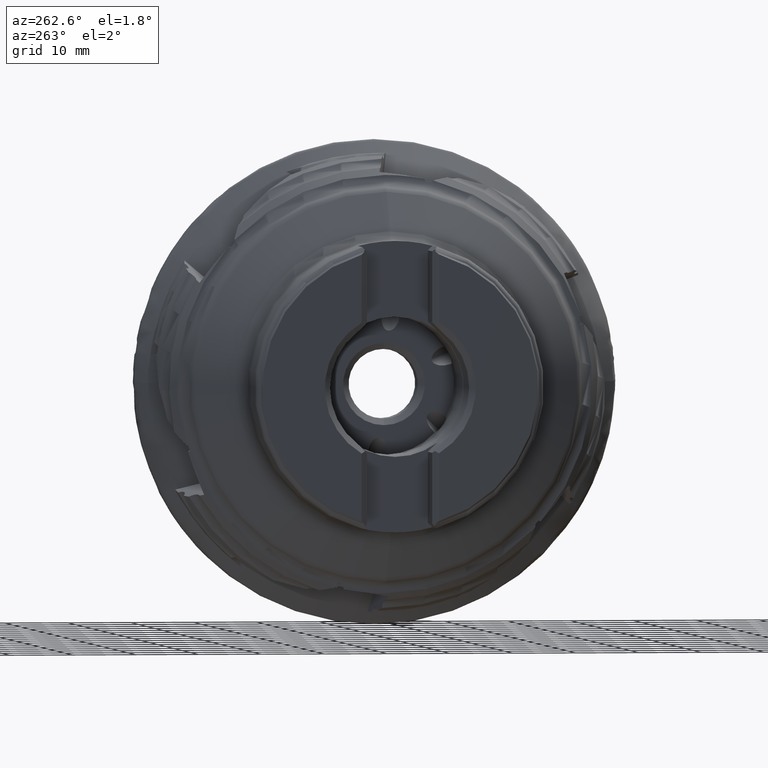
[diagram: clean part render]
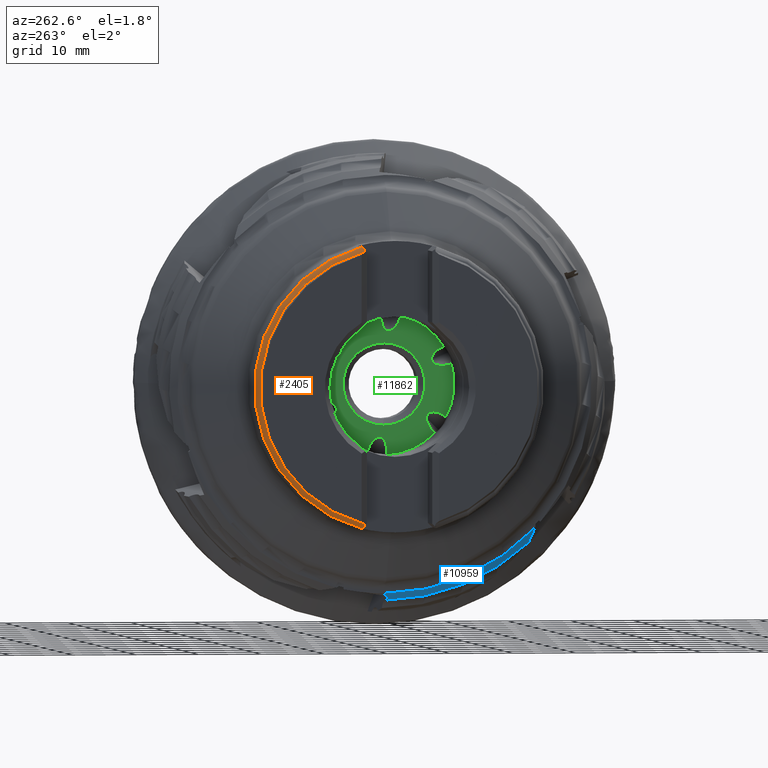
[diagram: same view with three faces highlighted in distinct colors, each labeled with its STEP entity id]
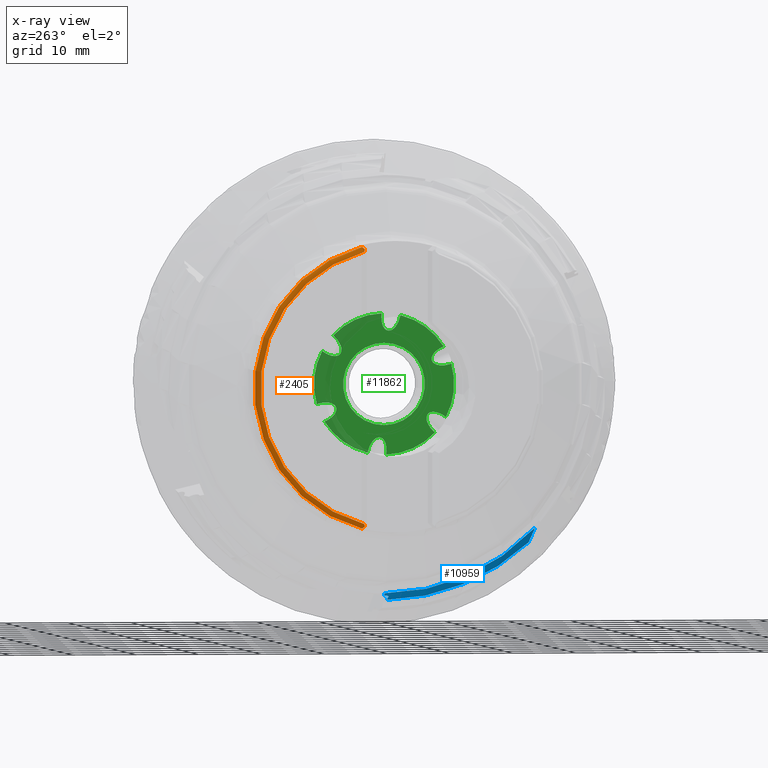
[diagram: x-ray of the same camera — body ghosted, the three highlighted faces saturated]
A machine part, auxiliary view with three faces highlighted in distinct colors.
The next image is the same camera in x-ray (body ghosted, the three faces saturated) — at least one of them is partly hidden behind the body in this view.
Their STEP definitions:

[orange] entity #2405 — the highlighted toroidal blend (fillet) surface has major radius 22 mm and minor (blend) radius 1 mm.
#309 = EDGE_CURVE ( 'NONE', #9763, #8034, #2892, .T. ) ;
#355 = CARTESIAN_POINT ( 'NONE',  ( -38.59392435208307100, 5.543924352083065400, -21.84392435208306800 ) ) ;
#623 = VERTEX_POINT ( 'NONE', #11061 ) ;
#653 = AXIS2_PLACEMENT_3D ( 'NONE', #6566, #2868, #3807 ) ;
#679 = CARTESIAN_POINT ( 'NONE',  ( -37.74999999999999300, 5.924000852636036800, -22.22400085263603800 ) ) ;
#709 = EDGE_CURVE ( 'NONE', #10643, #8169, #3920, .T. ) ;
#820 = ORIENTED_EDGE ( 'NONE', *, *, #309, .F. ) ;
#1083 = B_SPLINE_CURVE_WITH_KNOTS ( 'NONE', 3,
 ( #355, #2230, #9646, #4107 ),
 .UNSPECIFIED., .F., .F.,
 ( 4, 4 ),
 ( 0.0000000000000000000, 0.0004227973774439351400 ),
 .UNSPECIFIED. ) ;
#1260 = CARTESIAN_POINT ( 'NONE',  ( -38.59392435208307100, 5.543924352083065400, -21.84392435208306800 ) ) ;
#1725 = CARTESIAN_POINT ( 'NONE',  ( -38.09875725518982400, 5.884928782408032100, 22.18492878240802900 ) ) ;
#1964 = ORIENTED_EDGE ( 'NONE', *, *, #4383, .F. ) ;
#2003 = CARTESIAN_POINT ( 'NONE',  ( -38.72876197310684200, 5.678761973106821500, 21.46657139491063800 ) ) ;
#2230 = CARTESIAN_POINT ( 'NONE',  ( -38.65485736266822400, 5.604857362668206600, -21.72956523835142000 ) ) ;
#2405 = ADVANCED_FACE ( 'NONE', ( #8545 ), #6079, .T. ) ;
#2660 = CARTESIAN_POINT ( 'NONE',  ( -38.51025535695749400, 5.652231412740599500, 21.95223141274060600 ) ) ;
#2840 = VERTEX_POINT ( 'NONE', #1260 ) ;
#2868 = DIRECTION ( 'NONE',  ( 1.000000000000000000, -0.0000000000000000000, -0.0000000000000000000 ) ) ;
#2892 = CIRCLE ( 'NONE', #4783, 22.99999999999999600 ) ;
#3725 = EDGE_CURVE ( 'NONE', #2840, #623, #1083, .T. ) ;
#3807 = DIRECTION ( 'NONE',  ( 0.0000000000000000000, 0.0000000000000000000, -1.000000000000000000 ) ) ;
#3893 = EDGE_LOOP ( 'NONE', ( #10751, #9922, #4750, #820, #1964, #8447 ) ) ;
#3920 = B_SPLINE_CURVE_WITH_KNOTS ( 'NONE', 3,
 ( #2003, #3931, #10294, #6679 ),
 .UNSPECIFIED., .F., .F.,
 ( 4, 4 ),
 ( 0.0000000000000000000, 0.0004227973774523293600 ),
 .UNSPECIFIED. ) ;
#3931 = CARTESIAN_POINT ( 'NONE',  ( -38.70207927134853800, 5.652079271348525500, 21.60540748741974300 ) ) ;
#4107 = CARTESIAN_POINT ( 'NONE',  ( -38.72876197310684200, 5.678761973106823300, -21.46657139491064100 ) ) ;
#4381 = CARTESIAN_POINT ( 'NONE',  ( -38.50153732947688200, 5.649252262166675600, -21.94925226216668100 ) ) ;
#4383 = EDGE_CURVE ( 'NONE', #2840, #9763, #9549, .T. ) ;
#4510 = CARTESIAN_POINT ( 'NONE',  ( -37.92676474931748500, 5.924000852636037700, 22.22400085263604200 ) ) ;
#4607 = DIRECTION ( 'NONE',  ( 1.000000000000000000, -0.0000000000000000000, -0.0000000000000000000 ) ) ;
#4655 = CARTESIAN_POINT ( 'NONE',  ( -37.74999999999999300, 5.924000852636036800, -22.22400085263603800 ) ) ;
#4750 = ORIENTED_EDGE ( 'NONE', *, *, #10699, .F. ) ;
#4783 = AXIS2_PLACEMENT_3D ( 'NONE', #7914, #8119, #11976 ) ;
#5113 = CARTESIAN_POINT ( 'NONE',  ( -37.74999999999999300, 5.924000852636039500, 22.22400085263603800 ) ) ;
#5317 = CARTESIAN_POINT ( 'NONE',  ( -38.31858720140054700, 5.782381640609658600, -22.08238164060966100 ) ) ;
#5357 = CARTESIAN_POINT ( 'NONE',  ( -38.72876197310684200, 5.678761973106821500, 21.46657139491063800 ) ) ;
#6079 = TOROIDAL_SURFACE ( 'NONE', #653, 21.99999999999999600, 1.000000000000002400 ) ;
#6237 = CARTESIAN_POINT ( 'NONE',  ( -37.92736952853886800, 5.924000852641955600, -22.22400085264196100 ) ) ;
#6566 = CARTESIAN_POINT ( 'NONE',  ( -37.74999999999999300, 0.0000000000000000000, 0.0000000000000000000 ) ) ;
#6679 = CARTESIAN_POINT ( 'NONE',  ( -38.59392435207517000, 5.543924352093299900, 21.84392435209330300 ) ) ;
#6897 = B_SPLINE_CURVE_WITH_KNOTS ( 'NONE', 3,
 ( #10940, #4510, #1725, #8224, #2660, #9164 ),
 .UNSPECIFIED., .F., .F.,
 ( 4, 2, 4 ),
 ( 1.969727376262053200E-007, 0.0005224751361348518700, 0.001044753299532077600 ),
 .UNSPECIFIED. ) ;
#7298 = EDGE_CURVE ( 'NONE', #623, #10643, #10003, .T. ) ;
#7836 = CARTESIAN_POINT ( 'NONE',  ( -38.59392435208307100, 5.543924352083065400, -21.84392435208306800 ) ) ;
#7914 = CARTESIAN_POINT ( 'NONE',  ( -37.74999999999999300, 0.0000000000000000000, 0.0000000000000000000 ) ) ;
#8034 = VERTEX_POINT ( 'NONE', #5113 ) ;
#8119 = DIRECTION ( 'NONE',  ( 1.000000000000000000, -0.0000000000000000000, -0.0000000000000000000 ) ) ;
#8169 = VERTEX_POINT ( 'NONE', #9046 ) ;
#8224 = CARTESIAN_POINT ( 'NONE',  ( -38.39072168976487400, 5.748851910836854100, 22.04885191083685600 ) ) ;
#8447 = ORIENTED_EDGE ( 'NONE', *, *, #3725, .T. ) ;
#8545 = FACE_OUTER_BOUND ( 'NONE', #3893, .T. ) ;
#9004 = CARTESIAN_POINT ( 'NONE',  ( -38.55164026356511200, 5.598659864721146700, -21.89865986472115700 ) ) ;
#9046 = CARTESIAN_POINT ( 'NONE',  ( -38.59392435207517000, 5.543924352093299900, 21.84392435209330300 ) ) ;
#9164 = CARTESIAN_POINT ( 'NONE',  ( -38.59392435207517000, 5.543924352093299900, 21.84392435209330300 ) ) ;
#9549 = B_SPLINE_CURVE_WITH_KNOTS ( 'NONE', 3,
 ( #7836, #9004, #4381, #10822, #5317, #11758, #6237, #679 ),
 .UNSPECIFIED., .F., .F.,
 ( 4, 2, 2, 4 ),
 ( 0.0004107003696418296300, 0.0006718990010924279000, 0.0009330976325430261200, 0.001455494895444218700 ),
 .UNSPECIFIED. ) ;
#9646 = CARTESIAN_POINT ( 'NONE',  ( -38.70207927134912000, 5.652079271349101900, -21.60540748741688300 ) ) ;
#9763 = VERTEX_POINT ( 'NONE', #4655 ) ;
#9922 = ORIENTED_EDGE ( 'NONE', *, *, #709, .T. ) ;
#9988 = AXIS2_PLACEMENT_3D ( 'NONE', #10111, #4607, #11033 ) ;
#10003 = CIRCLE ( 'NONE', #9988, 22.20499999999999500 ) ;
#10111 = CARTESIAN_POINT ( 'NONE',  ( -38.72876197310684200, 0.0000000000000000000, 0.0000000000000000000 ) ) ;
#10294 = CARTESIAN_POINT ( 'NONE',  ( -38.65485736266573000, 5.604857362665715200, 21.72956523835786800 ) ) ;
#10643 = VERTEX_POINT ( 'NONE', #5357 ) ;
#10699 = EDGE_CURVE ( 'NONE', #8034, #8169, #6897, .T. ) ;
#10751 = ORIENTED_EDGE ( 'NONE', *, *, #7298, .T. ) ;
#10822 = CARTESIAN_POINT ( 'NONE',  ( -38.38575523693376100, 5.740736885033991000, -22.04073688503399700 ) ) ;
#10940 = CARTESIAN_POINT ( 'NONE',  ( -37.74999999999999300, 5.924000852636039500, 22.22400085263603800 ) ) ;
#11033 = DIRECTION ( 'NONE',  ( 0.0000000000000000000, 0.0000000000000000000, -1.000000000000000000 ) ) ;
#11061 = CARTESIAN_POINT ( 'NONE',  ( -38.72876197310684200, 5.678761973106823300, -21.46657139491064100 ) ) ;
#11758 = CARTESIAN_POINT ( 'NONE',  ( -38.09999039233138500, 5.884532718558854300, -22.18453271855886300 ) ) ;
#11976 = DIRECTION ( 'NONE',  ( 0.0000000000000000000, 0.0000000000000000000, -1.000000000000000000 ) ) ;

[blue] entity #10959 — the highlighted conical surface has half-angle 38.159 deg.
#175 = ORIENTED_EDGE ( 'NONE', *, *, #9642, .F. ) ;
#201 = ORIENTED_EDGE ( 'NONE', *, *, #677, .T. ) ;
#228 = CARTESIAN_POINT ( 'NONE',  ( -19.70666359297981900, -23.88691259611927400, -22.94611002962514200 ) ) ;
#350 = DIRECTION ( 'NONE',  ( 1.000000000000000000, -0.0000000000000000000, -0.0000000000000000000 ) ) ;
#473 = B_SPLINE_CURVE_WITH_KNOTS ( 'NONE', 3,
 ( #4746, #8414, #3787, #11165 ),
 .UNSPECIFIED., .F., .F.,
 ( 4, 4 ),
 ( 0.0007692040697879575300, 0.001823148888772148900 ),
 .UNSPECIFIED. ) ;
#677 = EDGE_CURVE ( 'NONE', #3219, #11070, #2449, .T. ) ;
#816 = EDGE_CURVE ( 'NONE', #1944, #9334, #473, .T. ) ;
#1563 = AXIS2_PLACEMENT_3D ( 'NONE', #5921, #350, #6843 ) ;
#1639 = CARTESIAN_POINT ( 'NONE',  ( -19.70666359297981900, -23.88691259611927400, -22.94611002962514200 ) ) ;
#1891 = EDGE_CURVE ( 'NONE', #5120, #1944, #4591, .T. ) ;
#1944 = VERTEX_POINT ( 'NONE', #8597 ) ;
#2040 = DIRECTION ( 'NONE',  ( 0.0000000000000000000, 0.0000000000000000000, -1.000000000000000000 ) ) ;
#2096 = EDGE_LOOP ( 'NONE', ( #201, #5476, #5708, #4901, #175, #3696, #10156 ) ) ;
#2449 = CIRCLE ( 'NONE', #5791, 33.00450000000000000 ) ;
#2962 = CARTESIAN_POINT ( 'NONE',  ( -19.30005547569797700, -0.4880990064268248000, -33.43945497671218400 ) ) ;
#3039 = CARTESIAN_POINT ( 'NONE',  ( -18.88684828796765200, -23.36982122151208300, -24.38294973106580700 ) ) ;
#3165 = FACE_OUTER_BOUND ( 'NONE', #2096, .T. ) ;
#3219 = VERTEX_POINT ( 'NONE', #7547 ) ;
#3562 = CARTESIAN_POINT ( 'NONE',  ( -19.80688788419505600, -23.83143278498980800, -22.89018516192646000 ) ) ;
#3585 = VERTEX_POINT ( 'NONE', #11246 ) ;
#3696 = ORIENTED_EDGE ( 'NONE', *, *, #7553, .F. ) ;
#3784 = B_SPLINE_CURVE_WITH_KNOTS ( 'NONE', 3,
 ( #1639, #8127, #3562, #10006 ),
 .UNSPECIFIED., .F., .F.,
 ( 4, 4 ),
 ( 0.001596083236374577800, 0.001787299461741648200 ),
 .UNSPECIFIED. ) ;
#3787 = CARTESIAN_POINT ( 'NONE',  ( -18.72295030577911800, -0.6025340092266929800, -33.89030995260288400 ) ) ;
#3929 = LINE ( 'NONE', #9673, #9150 ) ;
#4143 = DIRECTION ( 'NONE',  ( 0.7862989186328924700, 0.0000000000000000000, -0.6178462677371645600 ) ) ;
#4591 =( BOUNDED_CURVE ( )  B_SPLINE_CURVE ( 3, ( #7586, #8484, #2962, #9448 ),
 .UNSPECIFIED., .F., .F. ) 
 B_SPLINE_CURVE_WITH_KNOTS ( ( 4, 4 ),
 ( 3.211812103060546000, 3.218575622248856000 ),
 .UNSPECIFIED. ) 
 CURVE ( )  GEOMETRIC_REPRESENTATION_ITEM ( )  RATIONAL_B_SPLINE_CURVE ( ( 1.000000000000000000, 0.9999961879043155500, 0.9999961879043155500, 1.000000000000000000 ) ) 
 REPRESENTATION_ITEM ( '' )  );
#4746 = CARTESIAN_POINT ( 'NONE',  ( -19.26455540980058600, -0.7325618905116250100, -33.46200450738582800 ) ) ;
#4864 = DIRECTION ( 'NONE',  ( 1.000000000000000000, -0.0000000000000000000, -0.0000000000000000000 ) ) ;
#4901 = ORIENTED_EDGE ( 'NONE', *, *, #816, .T. ) ;
#5120 = VERTEX_POINT ( 'NONE', #11861 ) ;
#5364 = CONICAL_SURFACE ( 'NONE', #10346, 34.10849999999999900, 0.6660006700816848400 ) ;
#5476 = ORIENTED_EDGE ( 'NONE', *, *, #10504, .T. ) ;
#5708 = ORIENTED_EDGE ( 'NONE', *, *, #1891, .T. ) ;
#5791 = AXIS2_PLACEMENT_3D ( 'NONE', #6483, #4864, #2040 ) ;
#5921 = CARTESIAN_POINT ( 'NONE',  ( -18.45200000000000200, 0.0000000000000000000, 0.0000000000000000000 ) ) ;
#6483 = CARTESIAN_POINT ( 'NONE',  ( -19.85699999999999900, 0.0000000000000000000, 0.0000000000000000000 ) ) ;
#6738 = CARTESIAN_POINT ( 'NONE',  ( -19.30506998640255000, -23.63490741675924100, -23.66395477792954300 ) ) ;
#6843 = DIRECTION ( 'NONE',  ( 0.0000000000000000000, 0.0000000000000000000, -1.000000000000000000 ) ) ;
#6945 = CARTESIAN_POINT ( 'NONE',  ( -18.45199999999995900, -23.09165496261324100, -25.10309230627990500 ) ) ;
#7490 = CARTESIAN_POINT ( 'NONE',  ( -18.45200000000000200, 0.0000000000000000000, 0.0000000000000000000 ) ) ;
#7547 = CARTESIAN_POINT ( 'NONE',  ( -19.85699999999912500, -23.80369284649716000, -22.86222270733139800 ) ) ;
#7553 = EDGE_CURVE ( 'NONE', #3585, #8489, #11783, .T. ) ;
#7586 = CARTESIAN_POINT ( 'NONE',  ( -19.36638545261531900, 0.0000000000000000000, -33.39000780093426400 ) ) ;
#8127 = CARTESIAN_POINT ( 'NONE',  ( -19.75677574845118300, -23.85917270145234800, -22.91814760264179900 ) ) ;
#8414 = CARTESIAN_POINT ( 'NONE',  ( -18.99380398835462800, -0.6675602252317006700, -33.67622554699568800 ) ) ;
#8425 = DIRECTION ( 'NONE',  ( 1.000000000000000000, -0.0000000000000000000, -0.0000000000000000000 ) ) ;
#8484 = CARTESIAN_POINT ( 'NONE',  ( -19.33399895269866100, -0.2439107787207285800, -33.41545598307518400 ) ) ;
#8489 = VERTEX_POINT ( 'NONE', #6945 ) ;
#8544 = CARTESIAN_POINT ( 'NONE',  ( -19.85699999999999900, 0.0000000000000000000, -33.00450000000000700 ) ) ;
#8597 = CARTESIAN_POINT ( 'NONE',  ( -19.26455540980058600, -0.7325618905116250100, -33.46200450738582800 ) ) ;
#8939 = CARTESIAN_POINT ( 'NONE',  ( -18.45200000000000200, -0.5374845960428639200, -34.10426487345851900 ) ) ;
#8967 = EDGE_CURVE ( 'NONE', #3585, #3219, #3784, .T. ) ;
#9150 = VECTOR ( 'NONE', #4143, 999.9999999999998900 ) ;
#9334 = VERTEX_POINT ( 'NONE', #8939 ) ;
#9448 = CARTESIAN_POINT ( 'NONE',  ( -19.26455540980058600, -0.7325618905116250100, -33.46200450738582800 ) ) ;
#9528 = CARTESIAN_POINT ( 'NONE',  ( -18.45199999999995900, -23.09165496261324100, -25.10309230627990500 ) ) ;
#9642 = EDGE_CURVE ( 'NONE', #8489, #9334, #10984, .T. ) ;
#9673 = CARTESIAN_POINT ( 'NONE',  ( -18.45200000000000200, 0.0000000000000000000, -34.10849999999999900 ) ) ;
#10006 = CARTESIAN_POINT ( 'NONE',  ( -19.85699999999912500, -23.80369284649716000, -22.86222270733139800 ) ) ;
#10156 = ORIENTED_EDGE ( 'NONE', *, *, #8967, .T. ) ;
#10257 = DIRECTION ( 'NONE',  ( 0.0000000000000000000, 0.0000000000000000000, -1.000000000000000000 ) ) ;
#10346 = AXIS2_PLACEMENT_3D ( 'NONE', #7490, #8425, #10257 ) ;
#10504 = EDGE_CURVE ( 'NONE', #11070, #5120, #3929, .T. ) ;
#10959 = ADVANCED_FACE ( 'NONE', ( #3165 ), #5364, .T. ) ;
#10984 = CIRCLE ( 'NONE', #1563, 34.10849999999999900 ) ;
#11070 = VERTEX_POINT ( 'NONE', #8544 ) ;
#11165 = CARTESIAN_POINT ( 'NONE',  ( -18.45200000000000200, -0.5374845960428639200, -34.10426487345851900 ) ) ;
#11246 = CARTESIAN_POINT ( 'NONE',  ( -19.70666359297981900, -23.88691259611927400, -22.94611002962514200 ) ) ;
#11783 =( BOUNDED_CURVE ( )  B_SPLINE_CURVE ( 3, ( #228, #6738, #3039, #9528 ),
 .UNSPECIFIED., .F., .F. ) 
 B_SPLINE_CURVE_WITH_KNOTS ( ( 4, 4 ),
 ( 3.187333164371280800, 3.191123771309231300 ),
 .UNSPECIFIED. ) 
 CURVE ( )  GEOMETRIC_REPRESENTATION_ITEM ( )  RATIONAL_B_SPLINE_CURVE ( ( 1.000000000000000000, 0.9999988026086118500, 0.9999988026086118500, 1.000000000000000000 ) ) 
 REPRESENTATION_ITEM ( '' )  );
#11861 = CARTESIAN_POINT ( 'NONE',  ( -19.36638545261531900, 0.0000000000000000000, -33.39000780093426400 ) ) ;

[green] entity #11862 — the highlighted planar face has unit normal (1, 0, -0).
#54 = DIRECTION ( 'NONE',  ( 1.000000000000000000, -0.0000000000000000000, -0.0000000000000000000 ) ) ;
#116 = CARTESIAN_POINT ( 'NONE',  ( -19.20000000000000600, -6.761790767063582000, -4.040035491985598500 ) ) ;
#123 = VERTEX_POINT ( 'NONE', #9672 ) ;
#148 = CARTESIAN_POINT ( 'NONE',  ( -19.20000000000000600, -2.628715805318014600, 10.83569809540997800 ) ) ;
#219 = AXIS2_PLACEMENT_3D ( 'NONE', #2268, #8764, #3190 ) ;
#240 =( BOUNDED_CURVE ( )  B_SPLINE_CURVE ( 3, ( #10276, #116, #2916, #9404 ),
 .UNSPECIFIED., .F., .F. ) 
 B_SPLINE_CURVE_WITH_KNOTS ( ( 4, 4 ),
 ( 2.690336760210254600, 4.622936137045077700 ),
 .UNSPECIFIED. ) 
 CURVE ( )  GEOMETRIC_REPRESENTATION_ITEM ( )  RATIONAL_B_SPLINE_CURVE ( ( 1.000000000000000000, 0.7122319921543625000, 0.7122319921543625000, 1.000000000000000000 ) ) 
 REPRESENTATION_ITEM ( '' )  );
#345 = VERTEX_POINT ( 'NONE', #2604 ) ;
#402 = CARTESIAN_POINT ( 'NONE',  ( -19.20000000000000600, -0.3624318880048189600, -11.14410800048874600 ) ) ;
#470 = CARTESIAN_POINT ( 'NONE',  ( -19.20000000000000600, 8.069631915704617200, 7.694383714440115300 ) ) ;
#496 = CARTESIAN_POINT ( 'NONE',  ( -19.20000000000000600, 0.0000000000000000000, 0.0000000000000000000 ) ) ;
#519 = VERTEX_POINT ( 'NONE', #4634 ) ;
#526 = EDGE_CURVE ( 'NONE', #10988, #770, #3924, .T. ) ;
#587 = CIRCLE ( 'NONE', #219, 11.14999999999999700 ) ;
#646 = EDGE_LOOP ( 'NONE', ( #3708, #2034 ) ) ;
#770 = VERTEX_POINT ( 'NONE', #5759 ) ;
#789 = AXIS2_PLACEMENT_3D ( 'NONE', #5629, #54, #6557 ) ;
#846 = EDGE_CURVE ( 'NONE', #8303, #10069, #11113, .T. ) ;
#860 = CARTESIAN_POINT ( 'NONE',  ( -19.20000000000000600, 9.832296574943148600, 5.258178778090471200 ) ) ;
#862 = DIRECTION ( 'NONE',  ( 0.0000000000000000000, 0.0000000000000000000, -1.000000000000000000 ) ) ;
#872 = CARTESIAN_POINT ( 'NONE',  ( -19.20000000000000600, 0.7846259256372367700, -8.412320537208181300 ) ) ;
#885 = ORIENTED_EDGE ( 'NONE', *, *, #2929, .F. ) ;
#916 = CIRCLE ( 'NONE', #4803, 11.14999999999999700 ) ;
#918 =( BOUNDED_CURVE ( )  B_SPLINE_CURVE ( 3, ( #8729, #2239, #9655, #4116 ),
 .UNSPECIFIED., .F., .F. ) 
 B_SPLINE_CURVE_WITH_KNOTS ( ( 4, 4 ),
 ( 1.556623160089488200, 3.327051791131078400 ),
 .UNSPECIFIED. ) 
 CURVE ( )  GEOMETRIC_REPRESENTATION_ITEM ( )  RATIONAL_B_SPLINE_CURVE ( ( 1.000000000000000000, 0.7554157499682079300, 0.7554157499682079300, 1.000000000000000000 ) ) 
 REPRESENTATION_ITEM ( '' )  );
#951 = EDGE_LOOP ( 'NONE', ( #6554, #11906, #6480, #5130, #9496, #9224, #8819, #6752, #4904, #5848, #6490, #1777, #885, #5539, #6437, #8061, #2490, #4000 ) ) ;
#972 = CARTESIAN_POINT ( 'NONE',  ( -19.20000000000000600, -10.69834772102292500, 3.141314380968518900 ) ) ;
#1289 = EDGE_CURVE ( 'NONE', #8303, #8275, #7474, .T. ) ;
#1425 = DIRECTION ( 'NONE',  ( 0.0000000000000000000, 0.0000000000000000000, -1.000000000000000000 ) ) ;
#1468 = AXIS2_PLACEMENT_3D ( 'NONE', #8179, #2614, #9123 ) ;
#1551 =( BOUNDED_CURVE ( )  B_SPLINE_CURVE ( 3, ( #9657, #5059, #5979, #402 ),
 .UNSPECIFIED., .F., .F. ) 
 B_SPLINE_CURVE_WITH_KNOTS ( ( 4, 4 ),
 ( 3.032129037030858700, 4.622936137045050100 ),
 .UNSPECIFIED. ) 
 CURVE ( )  GEOMETRIC_REPRESENTATION_ITEM ( )  RATIONAL_B_SPLINE_CURVE ( ( 1.000000000000000000, 0.7999977529096149500, 0.7999977529096149500, 1.000000000000000000 ) ) 
 REPRESENTATION_ITEM ( '' )  );
#1577 = PLANE ( 'NONE',  #10267 ) ;
#1617 = CARTESIAN_POINT ( 'NONE',  ( -19.20000000000000600, 6.500000000000002700, 0.0000000000000000000 ) ) ;
#1777 = ORIENTED_EDGE ( 'NONE', *, *, #9721, .T. ) ;
#1853 = VERTEX_POINT ( 'NONE', #2878 ) ;
#1875 = EDGE_CURVE ( 'NONE', #5284, #9514, #240, .T. ) ;
#1902 = CARTESIAN_POINT ( 'NONE',  ( -19.20000000000000600, 0.0000000000000000000, 0.0000000000000000000 ) ) ;
#1914 = AXIS2_PLACEMENT_3D ( 'NONE', #11946, #6428, #862 ) ;
#1998 =( BOUNDED_CURVE ( )  B_SPLINE_CURVE ( 3, ( #8842, #9749, #10668, #5157 ),
 .UNSPECIFIED., .F., .F. ) 
 B_SPLINE_CURVE_WITH_KNOTS ( ( 4, 4 ),
 ( 1.556623160089566600, 3.327051791131074400 ),
 .UNSPECIFIED. ) 
 CURVE ( )  GEOMETRIC_REPRESENTATION_ITEM ( )  RATIONAL_B_SPLINE_CURVE ( ( 1.000000000000000000, 0.7554157499682292400, 0.7554157499682292400, 1.000000000000000000 ) ) 
 REPRESENTATION_ITEM ( '' )  );
#2034 = ORIENTED_EDGE ( 'NONE', *, *, #8205, .T. ) ;
#2239 = CARTESIAN_POINT ( 'NONE',  ( -19.20000000000001000, 8.947441739896438800, -2.531552047965060400 ) ) ;
#2268 = CARTESIAN_POINT ( 'NONE',  ( -19.20000000000000600, 0.0000000000000000000, 0.0000000000000000000 ) ) ;
#2295 = VERTEX_POINT ( 'NONE', #6403 ) ;
#2298 = CARTESIAN_POINT ( 'NONE',  ( -19.20000000000001000, -7.564689689490756500, 4.677795094737121900 ) ) ;
#2428 = AXIS2_PLACEMENT_3D ( 'NONE', #2924, #9416, #3886 ) ;
#2490 = ORIENTED_EDGE ( 'NONE', *, *, #1289, .T. ) ;
#2539 = CARTESIAN_POINT ( 'NONE',  ( -19.20000000000000600, 7.564689689490716500, -4.677795094737224900 ) ) ;
#2604 = CARTESIAN_POINT ( 'NONE',  ( -19.20000000000000600, 10.69834772102274900, -3.141314380969597100 ) ) ;
#2614 = DIRECTION ( 'NONE',  ( 1.000000000000000000, -0.0000000000000000000, -0.0000000000000000000 ) ) ;
#2644 = EDGE_CURVE ( 'NONE', #123, #5284, #8140, .T. ) ;
#2669 = VERTEX_POINT ( 'NONE', #10251 ) ;
#2819 = CARTESIAN_POINT ( 'NONE',  ( -19.19999999999999900, -7.248486203595069500, -6.985613368154857600 ) ) ;
#2846 = DIRECTION ( 'NONE',  ( 0.0000000000000000000, 0.0000000000000000000, -1.000000000000000000 ) ) ;
#2878 = CARTESIAN_POINT ( 'NONE',  ( -19.20000000000000600, -0.3624318880048189600, -11.14410800048874600 ) ) ;
#2898 = CARTESIAN_POINT ( 'NONE',  ( -19.20000000000000600, 8.069631915704617200, 7.694383714440115300 ) ) ;
#2916 = CARTESIAN_POINT ( 'NONE',  ( -19.20000000000000600, -8.198825254750618200, -3.963030864809466500 ) ) ;
#2924 = CARTESIAN_POINT ( 'NONE',  ( -19.20000000000000600, 0.0000000000000000000, 0.0000000000000000000 ) ) ;
#2929 = EDGE_CURVE ( 'NONE', #345, #10488, #916, .T. ) ;
#3190 = DIRECTION ( 'NONE',  ( 0.0000000000000000000, 0.0000000000000000000, -1.000000000000000000 ) ) ;
#3223 = CARTESIAN_POINT ( 'NONE',  ( -19.20000000000000600, -0.7846259256371723700, 8.412320537208188400 ) ) ;
#3230 = CARTESIAN_POINT ( 'NONE',  ( -19.20000000000000600, -7.564689689490753800, 3.953478758909742200 ) ) ;
#3280 = CARTESIAN_POINT ( 'NONE',  ( -19.20000000000000600, 1.609268572729590800, -8.412320537208183100 ) ) ;
#3317 = CARTESIAN_POINT ( 'NONE',  ( -19.20000000000000600, 0.7846259256372367700, -8.412320537208181300 ) ) ;
#3495 = DIRECTION ( 'NONE',  ( 1.000000000000000000, 0.0000000000000000000, -0.0000000000000000000 ) ) ;
#3708 = ORIENTED_EDGE ( 'NONE', *, *, #9097, .T. ) ;
#3752 = FACE_BOUND ( 'NONE', #646, .T. ) ;
#3886 = DIRECTION ( 'NONE',  ( 0.0000000000000000000, 0.0000000000000000000, -1.000000000000000000 ) ) ;
#3888 =( BOUNDED_CURVE ( )  B_SPLINE_CURVE ( 3, ( #9045, #2539, #11796, #6279 ),
 .UNSPECIFIED., .F., .F. ) 
 B_SPLINE_CURVE_WITH_KNOTS ( ( 4, 4 ),
 ( 3.327051791131078400, 4.622936137045025300 ),
 .UNSPECIFIED. ) 
 CURVE ( )  GEOMETRIC_REPRESENTATION_ITEM ( )  RATIONAL_B_SPLINE_CURVE ( ( 1.000000000000000000, 0.8648849873690103200, 0.8648849873690103200, 1.000000000000000000 ) ) 
 REPRESENTATION_ITEM ( '' )  );
#3924 = CIRCLE ( 'NONE', #10331, 11.14999999999999700 ) ;
#4000 = ORIENTED_EDGE ( 'NONE', *, *, #7055, .T. ) ;
#4116 = CARTESIAN_POINT ( 'NONE',  ( -19.20000000000000600, 7.564689689490715600, -3.953478758909794200 ) ) ;
#4180 = CARTESIAN_POINT ( 'NONE',  ( -19.20000000000000600, 0.5980357939793592400, 9.550568510757688800 ) ) ;
#4350 = EDGE_CURVE ( 'NONE', #9912, #770, #11682, .T. ) ;
#4359 = CARTESIAN_POINT ( 'NONE',  ( -19.20000000000000600, 6.761790767063622800, 6.140242230922395600 ) ) ;
#4399 = CARTESIAN_POINT ( 'NONE',  ( -19.20000000000000600, 9.469864686937965500, -5.885929222398478300 ) ) ;
#4413 = CARTESIAN_POINT ( 'NONE',  ( -19.20000000000000600, 7.960204194457799400E-016, -6.500000000000002700 ) ) ;
#4535 =( BOUNDED_CURVE ( )  B_SPLINE_CURVE ( 3, ( #4571, #11943, #6425, #860 ),
 .UNSPECIFIED., .F., .F. ) 
 B_SPLINE_CURVE_WITH_KNOTS ( ( 4, 4 ),
 ( 2.690336760210259900, 4.622936137045042100 ),
 .UNSPECIFIED. ) 
 CURVE ( )  GEOMETRIC_REPRESENTATION_ITEM ( )  RATIONAL_B_SPLINE_CURVE ( ( 1.000000000000000000, 0.7122319921543738300, 0.7122319921543738300, 1.000000000000000000 ) ) 
 REPRESENTATION_ITEM ( '' )  );
#4571 = CARTESIAN_POINT ( 'NONE',  ( -19.20000000000000600, 6.761790767063624600, 5.422714255146853000 ) ) ;
#4634 = CARTESIAN_POINT ( 'NONE',  ( -19.20000000000000600, 0.0000000000000000000, 6.500000000000002700 ) ) ;
#4707 = CARTESIAN_POINT ( 'NONE',  ( -19.19999999999999900, -6.761790767063581100, -6.140242230922478200 ) ) ;
#4800 = DIRECTION ( 'NONE',  ( 1.000000000000000000, -0.0000000000000000000, -0.0000000000000000000 ) ) ;
#4803 = AXIS2_PLACEMENT_3D ( 'NONE', #496, #6985, #1425 ) ;
#4830 = CIRCLE ( 'NONE', #11234, 11.14999999999999700 ) ;
#4904 = ORIENTED_EDGE ( 'NONE', *, *, #4350, .T. ) ;
#5059 = CARTESIAN_POINT ( 'NONE',  ( -19.20000000000000600, -0.1200936958212163000, -8.412320537208183100 ) ) ;
#5086 = CIRCLE ( 'NONE', #789, 6.500000000000002700 ) ;
#5114 = CARTESIAN_POINT ( 'NONE',  ( -19.20000000000000600, -9.469864686937342000, 5.885929222399228800 ) ) ;
#5130 = ORIENTED_EDGE ( 'NONE', *, *, #7359, .F. ) ;
#5157 = CARTESIAN_POINT ( 'NONE',  ( -19.20000000000000600, -7.564689689490753800, 3.953478758909742200 ) ) ;
#5184 = EDGE_CURVE ( 'NONE', #123, #1853, #8872, .T. ) ;
#5284 = VERTEX_POINT ( 'NONE', #6637 ) ;
#5313 = EDGE_CURVE ( 'NONE', #345, #2669, #918, .T. ) ;
#5539 = ORIENTED_EDGE ( 'NONE', *, *, #5313, .T. ) ;
#5607 = VERTEX_POINT ( 'NONE', #972 ) ;
#5629 = CARTESIAN_POINT ( 'NONE',  ( -19.20000000000000600, 0.0000000000000000000, 0.0000000000000000000 ) ) ;
#5759 = CARTESIAN_POINT ( 'NONE',  ( -19.20000000000000600, 0.3624318880048479900, 11.14410800048875300 ) ) ;
#5764 = CARTESIAN_POINT ( 'NONE',  ( -19.20000000000000600, -0.7846259256371723700, 8.412320537208188400 ) ) ;
#5848 = ORIENTED_EDGE ( 'NONE', *, *, #526, .F. ) ;
#5909 = EDGE_CURVE ( 'NONE', #5607, #2295, #1998, .T. ) ;
#5979 = CARTESIAN_POINT ( 'NONE',  ( -19.20000000000000600, -0.5980357939792908500, -9.550568510757681700 ) ) ;
#6261 = EDGE_CURVE ( 'NONE', #2669, #10069, #3888, .T. ) ;
#6279 = CARTESIAN_POINT ( 'NONE',  ( -19.20000000000000600, 9.469864686937965500, -5.885929222398478300 ) ) ;
#6403 = CARTESIAN_POINT ( 'NONE',  ( -19.20000000000000600, -7.564689689490753800, 3.953478758909742200 ) ) ;
#6425 = CARTESIAN_POINT ( 'NONE',  ( -19.20000000000000600, 8.198825254750602200, 3.963030864809419000 ) ) ;
#6428 = DIRECTION ( 'NONE',  ( 1.000000000000000000, -0.0000000000000000000, -0.0000000000000000000 ) ) ;
#6437 = ORIENTED_EDGE ( 'NONE', *, *, #6261, .T. ) ;
#6477 = VERTEX_POINT ( 'NONE', #6680 ) ;
#6480 = ORIENTED_EDGE ( 'NONE', *, *, #1875, .T. ) ;
#6490 = ORIENTED_EDGE ( 'NONE', *, *, #8008, .T. ) ;
#6554 = ORIENTED_EDGE ( 'NONE', *, *, #5184, .F. ) ;
#6557 = DIRECTION ( 'NONE',  ( 0.0000000000000000000, 0.0000000000000000000, -1.000000000000000000 ) ) ;
#6613 = CARTESIAN_POINT ( 'NONE',  ( -19.20000000000000600, 0.0000000000000000000, 0.0000000000000000000 ) ) ;
#6637 = CARTESIAN_POINT ( 'NONE',  ( -19.20000000000000600, -6.761790767063582000, -5.422714255146914300 ) ) ;
#6680 = CARTESIAN_POINT ( 'NONE',  ( -19.20000000000000600, -9.469864686937342000, 5.885929222399228800 ) ) ;
#6752 = ORIENTED_EDGE ( 'NONE', *, *, #8347, .T. ) ;
#6961 = CARTESIAN_POINT ( 'NONE',  ( -19.20000000000000600, 6.761790767063624600, 5.422714255146853000 ) ) ;
#6975 =( BOUNDED_CURVE ( )  B_SPLINE_CURVE ( 3, ( #470, #11549, #4359, #6961 ),
 .UNSPECIFIED., .F., .F. ) 
 B_SPLINE_CURVE_WITH_KNOTS ( ( 4, 4 ),
 ( 1.556623160089470400, 2.690336760210259900 ),
 .UNSPECIFIED. ) 
 CURVE ( )  GEOMETRIC_REPRESENTATION_ITEM ( )  RATIONAL_B_SPLINE_CURVE ( ( 1.000000000000000000, 0.8957286566191593500, 0.8957286566191593500, 1.000000000000000000 ) ) 
 REPRESENTATION_ITEM ( '' )  );
#6985 = DIRECTION ( 'NONE',  ( 1.000000000000000000, -0.0000000000000000000, -0.0000000000000000000 ) ) ;
#7055 = EDGE_CURVE ( 'NONE', #8275, #1853, #1551, .T. ) ;
#7359 = EDGE_CURVE ( 'NONE', #5607, #9514, #4830, .T. ) ;
#7450 = DIRECTION ( 'NONE',  ( 0.0000000000000000000, 0.0000000000000000000, -1.000000000000000000 ) ) ;
#7474 =( BOUNDED_CURVE ( )  B_SPLINE_CURVE ( 3, ( #8884, #11597, #3280, #3317 ),
 .UNSPECIFIED., .F., .F. ) 
 B_SPLINE_CURVE_WITH_KNOTS ( ( 4, 4 ),
 ( 1.556623160089463800, 3.032129037030858700 ),
 .UNSPECIFIED. ) 
 CURVE ( )  GEOMETRIC_REPRESENTATION_ITEM ( )  RATIONAL_B_SPLINE_CURVE ( ( 1.000000000000000000, 0.8266545730079215600, 0.8266545730079215600, 1.000000000000000000 ) ) 
 REPRESENTATION_ITEM ( '' )  );
#7654 = EDGE_CURVE ( 'NONE', #10359, #6477, #587, .T. ) ;
#7904 = CARTESIAN_POINT ( 'NONE',  ( -19.20000000000000600, 6.761790767063624600, 5.422714255146853000 ) ) ;
#8008 = EDGE_CURVE ( 'NONE', #10988, #11801, #6975, .T. ) ;
#8061 = ORIENTED_EDGE ( 'NONE', *, *, #846, .F. ) ;
#8140 =( BOUNDED_CURVE ( )  B_SPLINE_CURVE ( 3, ( #9309, #2819, #4707, #11129 ),
 .UNSPECIFIED., .F., .F. ) 
 B_SPLINE_CURVE_WITH_KNOTS ( ( 4, 4 ),
 ( 1.556623160089437100, 2.690336760210254600 ),
 .UNSPECIFIED. ) 
 CURVE ( )  GEOMETRIC_REPRESENTATION_ITEM ( )  RATIONAL_B_SPLINE_CURVE ( ( 1.000000000000000000, 0.8957286566191543500, 0.8957286566191543500, 1.000000000000000000 ) ) 
 REPRESENTATION_ITEM ( '' )  );
#8179 = CARTESIAN_POINT ( 'NONE',  ( -19.20000000000000600, 0.0000000000000000000, 0.0000000000000000000 ) ) ;
#8205 = EDGE_CURVE ( 'NONE', #8688, #519, #8571, .T. ) ;
#8275 = VERTEX_POINT ( 'NONE', #872 ) ;
#8298 = CARTESIAN_POINT ( 'NONE',  ( -19.20000000000000600, 2.628715805318132800, -10.83569809540994400 ) ) ;
#8303 = VERTEX_POINT ( 'NONE', #8298 ) ;
#8347 = EDGE_CURVE ( 'NONE', #10359, #9912, #10735, .T. ) ;
#8405 = DIRECTION ( 'NONE',  ( 1.000000000000000000, -0.0000000000000000000, -0.0000000000000000000 ) ) ;
#8506 = CARTESIAN_POINT ( 'NONE',  ( -19.20000000000000300, -2.352864080008507200, 9.389503203072243000 ) ) ;
#8571 = CIRCLE ( 'NONE', #1468, 6.500000000000002700 ) ;
#8685 = FACE_OUTER_BOUND ( 'NONE', #951, .T. ) ;
#8688 = VERTEX_POINT ( 'NONE', #4413 ) ;
#8729 = CARTESIAN_POINT ( 'NONE',  ( -19.20000000000000600, 10.69834772102274900, -3.141314380969597100 ) ) ;
#8758 = CARTESIAN_POINT ( 'NONE',  ( -19.20000000000000600, 9.832296574943148600, 5.258178778090471200 ) ) ;
#8764 = DIRECTION ( 'NONE',  ( 1.000000000000000000, -0.0000000000000000000, -0.0000000000000000000 ) ) ;
#8819 = ORIENTED_EDGE ( 'NONE', *, *, #7654, .F. ) ;
#8842 = CARTESIAN_POINT ( 'NONE',  ( -19.20000000000000600, -10.69834772102292500, 3.141314380968518900 ) ) ;
#8872 = CIRCLE ( 'NONE', #1914, 11.14999999999999700 ) ;
#8884 = CARTESIAN_POINT ( 'NONE',  ( -19.20000000000000600, 2.628715805318132800, -10.83569809540994400 ) ) ;
#9045 = CARTESIAN_POINT ( 'NONE',  ( -19.20000000000000600, 7.564689689490715600, -3.953478758909794200 ) ) ;
#9097 = EDGE_CURVE ( 'NONE', #519, #8688, #5086, .T. ) ;
#9123 = DIRECTION ( 'NONE',  ( 0.0000000000000000000, 0.0000000000000000000, -1.000000000000000000 ) ) ;
#9224 = ORIENTED_EDGE ( 'NONE', *, *, #10557, .T. ) ;
#9309 = CARTESIAN_POINT ( 'NONE',  ( -19.20000000000000600, -8.069631915704906800, -7.694383714439899400 ) ) ;
#9404 = CARTESIAN_POINT ( 'NONE',  ( -19.20000000000000600, -9.832296574942951400, -5.258178778090973900 ) ) ;
#9416 = DIRECTION ( 'NONE',  ( 1.000000000000000000, -0.0000000000000000000, -0.0000000000000000000 ) ) ;
#9496 = ORIENTED_EDGE ( 'NONE', *, *, #5909, .T. ) ;
#9514 = VERTEX_POINT ( 'NONE', #10275 ) ;
#9609 = CARTESIAN_POINT ( 'NONE',  ( -19.20000000000000600, -0.7846259256371723700, 8.412320537208188400 ) ) ;
#9655 = CARTESIAN_POINT ( 'NONE',  ( -19.20000000000001000, 7.564689689490720100, -2.889926174166035400 ) ) ;
#9657 = CARTESIAN_POINT ( 'NONE',  ( -19.20000000000000600, 0.7846259256372367700, -8.412320537208181300 ) ) ;
#9672 = CARTESIAN_POINT ( 'NONE',  ( -19.20000000000000600, -8.069631915704906800, -7.694383714439899400 ) ) ;
#9705 = CARTESIAN_POINT ( 'NONE',  ( -19.20000000000000600, 0.1200936958212805200, 8.412320537208186600 ) ) ;
#9721 = EDGE_CURVE ( 'NONE', #11801, #10488, #4535, .T. ) ;
#9749 = CARTESIAN_POINT ( 'NONE',  ( -19.20000000000000600, -8.947441739896342800, 2.531552047965048800 ) ) ;
#9912 = VERTEX_POINT ( 'NONE', #9609 ) ;
#9926 =( BOUNDED_CURVE ( )  B_SPLINE_CURVE ( 3, ( #3230, #2298, #10627, #5114 ),
 .UNSPECIFIED., .F., .F. ) 
 B_SPLINE_CURVE_WITH_KNOTS ( ( 4, 4 ),
 ( 3.327051791131074400, 4.622936137044945300 ),
 .UNSPECIFIED. ) 
 CURVE ( )  GEOMETRIC_REPRESENTATION_ITEM ( )  RATIONAL_B_SPLINE_CURVE ( ( 1.000000000000000000, 0.8648849873690256400, 0.8648849873690256400, 1.000000000000000000 ) ) 
 REPRESENTATION_ITEM ( '' )  );
#9952 = DIRECTION ( 'NONE',  ( -0.0000000000000000000, 0.0000000000000000000, -1.000000000000000000 ) ) ;
#10069 = VERTEX_POINT ( 'NONE', #4399 ) ;
#10251 = CARTESIAN_POINT ( 'NONE',  ( -19.20000000000000600, 7.564689689490715600, -3.953478758909794200 ) ) ;
#10267 = AXIS2_PLACEMENT_3D ( 'NONE', #1617, #3495, #9952 ) ;
#10275 = CARTESIAN_POINT ( 'NONE',  ( -19.20000000000000600, -9.832296574942951400, -5.258178778090973900 ) ) ;
#10276 = CARTESIAN_POINT ( 'NONE',  ( -19.20000000000000600, -6.761790767063582000, -5.422714255146914300 ) ) ;
#10331 = AXIS2_PLACEMENT_3D ( 'NONE', #6613, #4800, #7450 ) ;
#10359 = VERTEX_POINT ( 'NONE', #148 ) ;
#10488 = VERTEX_POINT ( 'NONE', #8758 ) ;
#10557 = EDGE_CURVE ( 'NONE', #2295, #6477, #9926, .T. ) ;
#10621 = CARTESIAN_POINT ( 'NONE',  ( -19.20000000000000600, 0.3624318880048479900, 11.14410800048875300 ) ) ;
#10627 = CARTESIAN_POINT ( 'NONE',  ( -19.20000000000001000, -8.298958802444422700, 5.422576382311111100 ) ) ;
#10668 = CARTESIAN_POINT ( 'NONE',  ( -19.20000000000000600, -7.564689689490758300, 2.889926174166051400 ) ) ;
#10735 =( BOUNDED_CURVE ( )  B_SPLINE_CURVE ( 3, ( #11224, #8506, #11259, #5764 ),
 .UNSPECIFIED., .F., .F. ) 
 B_SPLINE_CURVE_WITH_KNOTS ( ( 4, 4 ),
 ( 1.556623160089460000, 3.032129037030862700 ),
 .UNSPECIFIED. ) 
 CURVE ( )  GEOMETRIC_REPRESENTATION_ITEM ( )  RATIONAL_B_SPLINE_CURVE ( ( 1.000000000000000000, 0.8266545730079197800, 0.8266545730079197800, 1.000000000000000000 ) ) 
 REPRESENTATION_ITEM ( '' )  );
#10988 = VERTEX_POINT ( 'NONE', #2898 ) ;
#11113 = CIRCLE ( 'NONE', #2428, 11.14999999999999700 ) ;
#11129 = CARTESIAN_POINT ( 'NONE',  ( -19.20000000000000600, -6.761790767063582000, -5.422714255146914300 ) ) ;
#11224 = CARTESIAN_POINT ( 'NONE',  ( -19.20000000000000600, -2.628715805318014600, 10.83569809540997800 ) ) ;
#11234 = AXIS2_PLACEMENT_3D ( 'NONE', #1902, #8405, #2846 ) ;
#11259 = CARTESIAN_POINT ( 'NONE',  ( -19.20000000000000300, -1.609268572729530800, 8.412320537208188400 ) ) ;
#11549 = CARTESIAN_POINT ( 'NONE',  ( -19.20000000000000600, 7.248486203595089000, 6.985613368154748300 ) ) ;
#11597 = CARTESIAN_POINT ( 'NONE',  ( -19.20000000000000600, 2.352864080008569400, -9.389503203072228700 ) ) ;
#11682 =( BOUNDED_CURVE ( )  B_SPLINE_CURVE ( 3, ( #3223, #9705, #4180, #10621 ),
 .UNSPECIFIED., .F., .F. ) 
 B_SPLINE_CURVE_WITH_KNOTS ( ( 4, 4 ),
 ( 3.032129037030862700, 4.622936137045054600 ),
 .UNSPECIFIED. ) 
 CURVE ( )  GEOMETRIC_REPRESENTATION_ITEM ( )  RATIONAL_B_SPLINE_CURVE ( ( 1.000000000000000000, 0.7999977529096147200, 0.7999977529096147200, 1.000000000000000000 ) ) 
 REPRESENTATION_ITEM ( '' )  );
#11796 = CARTESIAN_POINT ( 'NONE',  ( -19.20000000000000600, 8.298958802444468900, -5.422576382311259400 ) ) ;
#11801 = VERTEX_POINT ( 'NONE', #7904 ) ;
#11862 = ADVANCED_FACE ( 'NONE', ( #8685, #3752 ), #1577, .F. ) ;
#11906 = ORIENTED_EDGE ( 'NONE', *, *, #2644, .T. ) ;
#11943 = CARTESIAN_POINT ( 'NONE',  ( -19.20000000000000600, 6.761790767063623700, 4.040035491985583400 ) ) ;
#11946 = CARTESIAN_POINT ( 'NONE',  ( -19.20000000000000600, 0.0000000000000000000, 0.0000000000000000000 ) ) ;